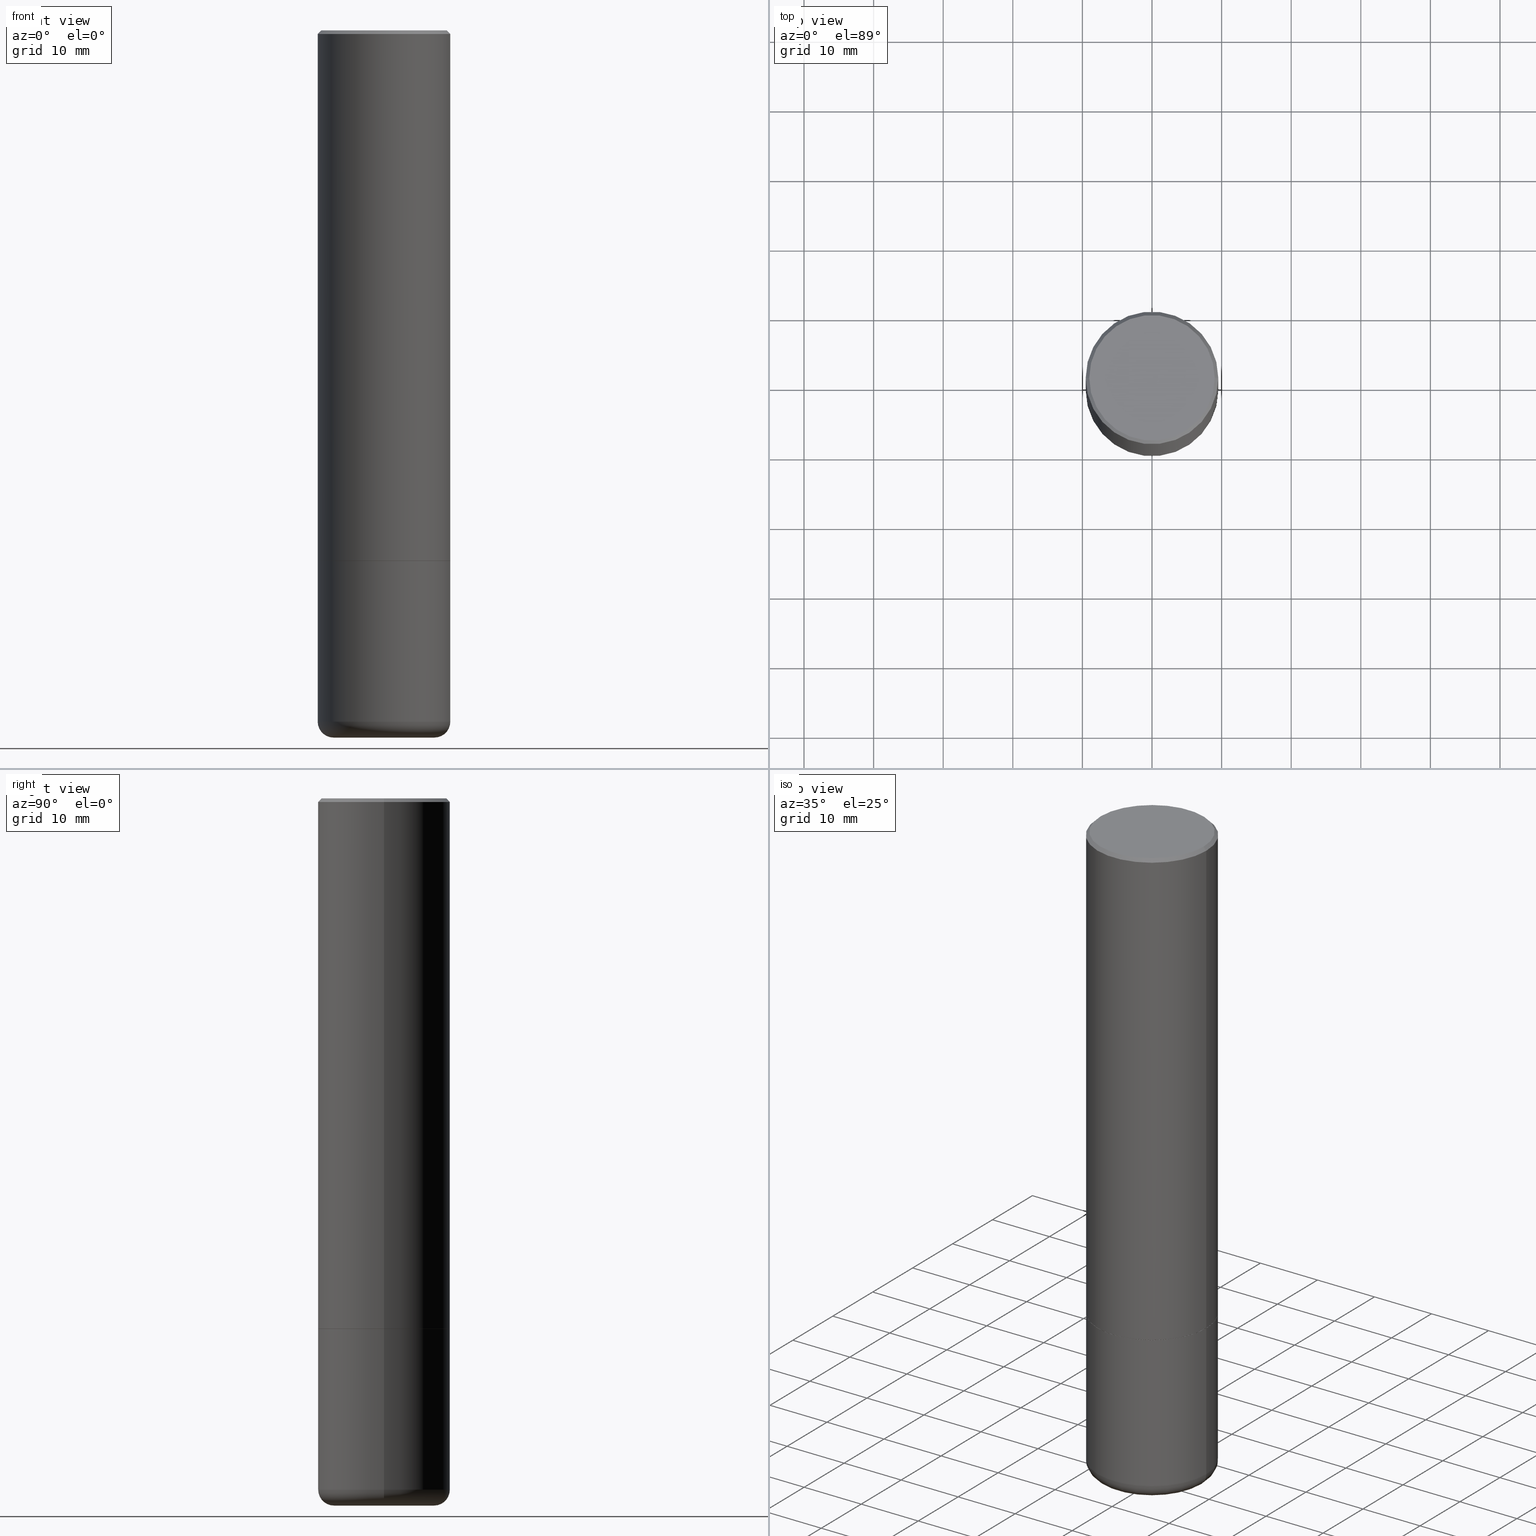
[diagram: canonical four-view strip — front | top / right | iso, engineering-drawing reading convention]
A machine part, canonical four-view strip (front | top / right | iso — engineering-drawing reading convention). The complete STEP part file that produces these views, byte-faithful:
ISO-10303-21;
HEADER;
FILE_DESCRIPTION (( 'STEP AP203' ),
    '1' );
FILE_NAME ('35719.STEP',
    '2022-11-02T20:51:30',
    ( '' ),
    ( '' ),
    'SwSTEP 2.0',
    'SolidWorks 2022',
    '' );
FILE_SCHEMA (( 'CONFIG_CONTROL_DESIGN' ));
ENDSEC;

DATA;
#1 = PERSON_AND_ORGANIZATION ( #315, #295 ) ;
#2 = CARTESIAN_POINT ( 'NONE',  ( 7.336406418555408669E-29, -1.047444401652943478E-14, -2.999999999999999556 ) ) ;
#3 = PERSON_AND_ORGANIZATION ( #315, #295 ) ;
#4 = LINE ( 'NONE', #468, #104 ) ;
#5 = ORIENTED_EDGE ( 'NONE', *, *, #289, .F. ) ;
#6 =( NAMED_UNIT ( * ) PLANE_ANGLE_UNIT ( ) SI_UNIT ( $, .RADIAN. ) );
#7 = CARTESIAN_POINT ( 'NONE',  ( 9.781021626775434250E-29, -1.396470664370530441E-14, -3.999650947105539256 ) ) ;
#8 = ORIENTED_EDGE ( 'NONE', *, *, #52, .F. ) ;
#9 = CARTESIAN_POINT ( 'NONE',  ( 9.781875224740546387E-29, -1.396592535537258233E-14, -4.000000000000000000 ) ) ;
#10 = ORIENTED_EDGE ( 'NONE', *, *, #254, .T. ) ;
#11 = CIRCLE ( 'NONE', #303, 0.3750000000000000555 ) ;
#12 = DIRECTION ( 'NONE',  ( 2.445468806185136597E-29, -3.491481338843145583E-15, -1.000000000000000000 ) ) ;
#13 =( GEOMETRIC_REPRESENTATION_CONTEXT ( 3 ) GLOBAL_UNCERTAINTY_ASSIGNED_CONTEXT ( ( #460 ) ) GLOBAL_UNIT_ASSIGNED_CONTEXT ( ( #148, #6, #68 ) ) REPRESENTATION_CONTEXT ( 'NONE', 'WORKASPACE' ) );
#14 = CC_DESIGN_SECURITY_CLASSIFICATION ( #314, ( #415 ) ) ;
#15 = EDGE_LOOP ( 'NONE', ( #395, #364 ) ) ;
#16 = CARTESIAN_POINT ( 'NONE',  ( 0.3739999999999994995, -1.308607205798409720E-14, -2.999999999999999556 ) ) ;
#17 = EDGE_LOOP ( 'NONE', ( #5, #326, #293, #252 ) ) ;
#18 = VECTOR ( 'NONE', #492, 39.37007874015748143 ) ;
#19 = EDGE_LOOP ( 'NONE', ( #473, #139, #24, #432 ) ) ;
#20 = EDGE_LOOP ( 'NONE', ( #205, #370 ) ) ;
#21 = DIRECTION ( 'NONE',  ( -2.445468806185136597E-29, 3.491481338843145583E-15, 1.000000000000000000 ) ) ;
#22 = VERTEX_POINT ( 'NONE', #383 ) ;
#23 = CARTESIAN_POINT ( 'NONE',  ( 7.336406418555408669E-29, -1.047444401652943478E-14, -2.999999999999999556 ) ) ;
#24 = ORIENTED_EDGE ( 'NONE', *, *, #164, .T. ) ;
#25 = AXIS2_PLACEMENT_3D ( 'NONE', #234, #48, #316 ) ;
#26 = ADVANCED_FACE ( 'NONE', ( #38 ), #193, .T. ) ;
#27 = DIRECTION ( 'NONE',  ( -2.445468806185136597E-29, 3.491481338843145583E-15, 1.000000000000000000 ) ) ;
#28 = CARTESIAN_POINT ( 'NONE',  ( 0.2442171118051470746, -1.564015765026606242E-14, -3.999650947105539256 ) ) ;
#29 = DIRECTION ( 'NONE',  ( -1.000000000000000000, 6.982962677686266711E-15, 0.000000000000000000 ) ) ;
#30 = VERTEX_POINT ( 'NONE', #36 ) ;
#31 = PERSON_AND_ORGANIZATION ( #315, #295 ) ;
#32 = ADVANCED_FACE ( 'NONE', ( #187 ), #33, .T. ) ;
#33 = CYLINDRICAL_SURFACE ( 'NONE', #42, 0.3749999999999992784 ) ;
#34 = AXIS2_PLACEMENT_3D ( 'NONE', #100, #334, #175 ) ;
#35 =( LENGTH_UNIT ( ) NAMED_UNIT ( * ) SI_UNIT ( $, .METRE. ) );
#36 = CARTESIAN_POINT ( 'NONE',  ( -0.2442171118051470746, -1.225934766671762741E-14, -3.999650947105539256 ) ) ;
#37 = CALENDAR_DATE ( 2022, 2, 11 ) ;
#38 = FACE_OUTER_BOUND ( 'NONE', #363, .T. ) ;
#39 = CC_DESIGN_DATE_AND_TIME_ASSIGNMENT ( #222, #191, ( #404 ) ) ;
#40 = CALENDAR_DATE ( 2022, 2, 11 ) ;
#41 = DIRECTION ( 'NONE',  ( -1.000000000000000000, 6.982962677686267499E-15, 0.000000000000000000 ) ) ;
#42 = AXIS2_PLACEMENT_3D ( 'NONE', #407, #340, #258 ) ;
#43 = CARTESIAN_POINT ( 'NONE',  ( -0.2850000000000003086, -1.162665720300238961E-14, -3.910003426924224534 ) ) ;
#44 = SHAPE_DEFINITION_REPRESENTATION ( #296, #417 ) ;
#45 = DIRECTION ( 'NONE',  ( -1.000000000000000000, 6.982962677686265922E-15, -4.876176775795935793E-29 ) ) ;
#46 = CARTESIAN_POINT ( 'NONE',  ( -0.3749999999999997780, 2.664535259100374119E-15, -1.844600658845588477E-29 ) ) ;
#47 = ORIENTED_EDGE ( 'NONE', *, *, #218, .F. ) ;
#48 = DIRECTION ( 'NONE',  ( -2.445468806185136597E-29, 3.491481338843145583E-15, 1.000000000000000000 ) ) ;
#49 = CONICAL_SURFACE ( 'NONE', #313, 0.2842146118051471215, 1.562069680534929894 ) ;
#50 = ORIENTED_EDGE ( 'NONE', *, *, #97, .F. ) ;
#51 = CC_DESIGN_DATE_AND_TIME_ASSIGNMENT ( #338, #343, ( #314 ) ) ;
#52 = EDGE_CURVE ( 'NONE', #166, #99, #336, .T. ) ;
#53 = EDGE_LOOP ( 'NONE', ( #329, #247, #396, #87 ) ) ;
#54 = ORIENTED_EDGE ( 'NONE', *, *, #170, .F. ) ;
#55 = CARTESIAN_POINT ( 'NONE',  ( 2.478951750578617109E-15, 0.3549999999999989275, -1.237341619044262680E-15 ) ) ;
#56 = ORIENTED_EDGE ( 'NONE', *, *, #74, .T. ) ;
#57 = CARTESIAN_POINT ( 'NONE',  ( 0.3749999999999995004, -1.309305502066178164E-14, -2.999999999999999556 ) ) ;
#58 = ADVANCED_FACE ( 'NONE', ( #416 ), #380, .F. ) ;
#59 = ORIENTED_EDGE ( 'NONE', *, *, #52, .T. ) ;
#60 = FACE_OUTER_BOUND ( 'NONE', #124, .T. ) ;
#61 = DIRECTION ( 'NONE',  ( -2.445468806185136597E-29, 3.491481338843145583E-15, 1.000000000000000000 ) ) ;
#62 = CLOSED_SHELL ( 'NONE', ( #186, #26, #154, #58, #434, #241, #414, #448, #285 ) ) ;
#63 = AXIS2_PLACEMENT_3D ( 'NONE', #427, #84, #243 ) ;
#64 = LINE ( 'NONE', #335, #365 ) ;
#65 = CARTESIAN_POINT ( 'NONE',  ( -0.3549999999999989275, 2.513866563967048758E-15, 4.268512490082953109E-18 ) ) ;
#66 = DIRECTION ( 'NONE',  ( -2.445468806185136597E-29, 3.491481338843145583E-15, 1.000000000000000000 ) ) ;
#67 = LINE ( 'NONE', #223, #310 ) ;
#68 =( NAMED_UNIT ( * ) SI_UNIT ( $, .STERADIAN. ) SOLID_ANGLE_UNIT ( ) );
#69 = FACE_OUTER_BOUND ( 'NONE', #17, .T. ) ;
#70 = PERSON_AND_ORGANIZATION ( #315, #295 ) ;
#71 = APPROVAL_PERSON_ORGANIZATION ( #1, #489, #238 ) ;
#72 = CARTESIAN_POINT ( 'NONE',  ( 7.333960949749226429E-29, -1.047095253519059492E-14, -2.999000000000000554 ) ) ;
#73 = APPLICATION_PROTOCOL_DEFINITION ( 'international standard', 'config_control_design', 1994, #129 ) ;
#74 = EDGE_CURVE ( 'NONE', #88, #297, #93, .T. ) ;
#75 = FACE_OUTER_BOUND ( 'NONE', #90, .T. ) ;
#76 = EDGE_CURVE ( 'NONE', #101, #171, #446, .T. ) ;
#77 = DIRECTION ( 'NONE',  ( 1.000000000000000000, -6.982962677686266711E-15, 4.876231632512002757E-29 ) ) ;
#78 = CARTESIAN_POINT ( 'NONE',  ( 0.3749999999999991673, -2.642516375941182112E-15, -0.02000000000000022246 ) ) ;
#79 = VECTOR ( 'NONE', #162, 39.37007874015748143 ) ;
#80 = CC_DESIGN_PERSON_AND_ORGANIZATION_ASSIGNMENT ( #267, #306, ( #172 ) ) ;
#81 = EDGE_CURVE ( 'NONE', #297, #171, #382, .T. ) ;
#82 = FACE_OUTER_BOUND ( 'NONE', #368, .T. ) ;
#83 = VERTEX_POINT ( 'NONE', #228 ) ;
#84 = DIRECTION ( 'NONE',  ( -2.445468806185136597E-29, 3.491481338843145583E-15, 1.000000000000000000 ) ) ;
#85 = DATE_AND_TIME ( #160, #216 ) ;
#86 = AXIS2_PLACEMENT_3D ( 'NONE', #55, #137, #403 ) ;
#87 = ORIENTED_EDGE ( 'NONE', *, *, #76, .F. ) ;
#88 = VERTEX_POINT ( 'NONE', #411 ) ;
#89 = DESIGN_CONTEXT ( 'detailed design', #158, 'design' ) ;
#90 = EDGE_LOOP ( 'NONE', ( #54, #291, #284, #281 ) ) ;
#91 = AXIS2_PLACEMENT_3D ( 'NONE', #356, #464, #280 ) ;
#92 = DIRECTION ( 'NONE',  ( -2.445468806185136597E-29, 3.491481338843145583E-15, 1.000000000000000000 ) ) ;
#93 = CIRCLE ( 'NONE', #226, 0.3749999999999995004 ) ;
#94 = TOROIDAL_SURFACE ( 'NONE', #447, 0.2850000000000003086, 0.08999999999999984401 ) ;
#95 = VERTEX_POINT ( 'NONE', #299 ) ;
#96 = CC_DESIGN_APPROVAL ( #489, ( #314 ) ) ;
#97 = EDGE_CURVE ( 'NONE', #119, #385, #11, .T. ) ;
#98 = CARTESIAN_POINT ( 'NONE',  ( 4.890937612370327459E-31, -6.982962677686369262E-17, -0.02000000000000022246 ) ) ;
#99 = VERTEX_POINT ( 'NONE', #180 ) ;
#100 = CARTESIAN_POINT ( 'NONE',  ( 9.781021626775434250E-29, -1.396470664370530441E-14, -3.999650947105539256 ) ) ;
#101 = VERTEX_POINT ( 'NONE', #65 ) ;
#102 = CARTESIAN_POINT ( 'NONE',  ( -0.2842146118051471215, -1.198126532868414923E-14, -4.000000000000000000 ) ) ;
#103 = EDGE_LOOP ( 'NONE', ( #177, #366, #333, #130 ) ) ;
#104 = VECTOR ( 'NONE', #123, 39.37007874015748854 ) ;
#105 = DIRECTION ( 'NONE',  ( 1.000000000000000000, -6.982962677686267499E-15, 0.000000000000000000 ) ) ;
#106 = CIRCLE ( 'NONE', #481, 0.2442171118051470746 ) ;
#107 = CARTESIAN_POINT ( 'NONE',  ( 0.000000000000000000, 0.000000000000000000, 0.000000000000000000 ) ) ;
#108 = DIRECTION ( 'NONE',  ( -1.000000000000000000, 6.982962677686265922E-15, 0.000000000000000000 ) ) ;
#109 = APPROVAL_DATE_TIME ( #410, #207 ) ;
#110 = CARTESIAN_POINT ( 'NONE',  ( 0.3750000000000000555, -1.627031500405102774E-14, -3.910003426924224534 ) ) ;
#111 = AXIS2_PLACEMENT_3D ( 'NONE', #2, #149, #239 ) ;
#112 = APPROVAL_ROLE ( '' ) ;
#113 = EDGE_CURVE ( 'NONE', #83, #119, #240, .T. ) ;
#114 = CARTESIAN_POINT ( 'NONE',  ( 0.2842146118051471215, -1.591577913059920711E-14, -4.000000000000000000 ) ) ;
#115 = DIRECTION ( 'NONE',  ( 1.000000000000000000, 0.000000000000000000, 0.000000000000000000 ) ) ;
#116 = FACE_OUTER_BOUND ( 'NONE', #53, .T. ) ;
#117 = APPROVAL_STATUS ( 'not_yet_approved' ) ;
#118 = DIRECTION ( 'NONE',  ( -2.445468806185136597E-29, 3.491481338843145583E-15, 1.000000000000000000 ) ) ;
#119 = VERTEX_POINT ( 'NONE', #110 ) ;
#120 = COORDINATED_UNIVERSAL_TIME_OFFSET ( 5, 0, .BEHIND. ) ;
#121 = AXIS2_PLACEMENT_3D ( 'NONE', #144, #188, #115 ) ;
#122 = DIRECTION ( 'NONE',  ( 2.445468806185136597E-29, -3.491481338843145583E-15, -1.000000000000000000 ) ) ;
#123 = DIRECTION ( 'NONE',  ( -0.7071067811868130271, 7.493145998871311837E-15, 0.7071067811862817853 ) ) ;
#124 = EDGE_LOOP ( 'NONE', ( #248, #480, #307, #213 ) ) ;
#125 = VECTOR ( 'NONE', #319, 39.37007874015748854 ) ;
#126 = ORIENTED_EDGE ( 'NONE', *, *, #225, .F. ) ;
#127 = ORIENTED_EDGE ( 'NONE', *, *, #97, .T. ) ;
#128 = CARTESIAN_POINT ( 'NONE',  ( 0.000000000000000000, 0.000000000000000000, 0.000000000000000000 ) ) ;
#129 = APPLICATION_CONTEXT ( 'configuration controlled 3d designs of mechanical parts and assemblies' ) ;
#130 = ORIENTED_EDGE ( 'NONE', *, *, #169, .F. ) ;
#131 = CC_DESIGN_PERSON_AND_ORGANIZATION_ASSIGNMENT ( #70, #224, ( #314 ) ) ;
#132 = DIRECTION ( 'NONE',  ( -2.445468806185136597E-29, 3.491481338843145583E-15, 1.000000000000000000 ) ) ;
#133 = LOCAL_TIME ( 16, 51, 30.00000000000000000, #347 ) ;
#134 = EDGE_LOOP ( 'NONE', ( #472, #201 ) ) ;
#135 = DIRECTION ( 'NONE',  ( 1.000000000000000000, -6.982962677686265922E-15, 4.876176775795935793E-29 ) ) ;
#136 = CARTESIAN_POINT ( 'NONE',  ( 9.781021626775434250E-29, -1.396470664370530441E-14, -3.999650947105539256 ) ) ;
#137 = DIRECTION ( 'NONE',  ( 2.438088387897960049E-29, -3.491481338843145188E-15, -1.000000000000000000 ) ) ;
#138 = APPROVAL ( #341, 'UNSPECIFIED' ) ;
#139 = ORIENTED_EDGE ( 'NONE', *, *, #242, .T. ) ;
#140 = CARTESIAN_POINT ( 'NONE',  ( 9.781875224740546387E-29, -1.396592535537258233E-14, -4.000000000000000000 ) ) ;
#141 = ADVANCED_FACE ( 'NONE', ( #69 ), #165, .T. ) ;
#142 = CARTESIAN_POINT ( 'NONE',  ( -0.3749999999999992784, 2.664535259100370569E-15, -1.844600658845586235E-29 ) ) ;
#143 = CONICAL_SURFACE ( 'NONE', #111, 0.3739999999999994995, 0.7853981633978239785 ) ;
#144 = CARTESIAN_POINT ( 'NONE',  ( 0.000000000000000000, 0.000000000000000000, 0.000000000000000000 ) ) ;
#145 = DIRECTION ( 'NONE',  ( -0.7071067811865469066, 2.468850131082251144E-15, -0.7071067811865479058 ) ) ;
#146 = PERSON_AND_ORGANIZATION ( #315, #295 ) ;
#147 = ORIENTED_EDGE ( 'NONE', *, *, #486, .F. ) ;
#148 =( CONVERSION_BASED_UNIT ( 'INCH', #452 ) LENGTH_UNIT ( ) NAMED_UNIT ( #449 ) );
#149 = DIRECTION ( 'NONE',  ( -2.445468806185136597E-29, 3.491481338843145583E-15, 1.000000000000000000 ) ) ;
#150 = CIRCLE ( 'NONE', #471, 0.3750000000000000555 ) ;
#151 = COORDINATED_UNIVERSAL_TIME_OFFSET ( 5, 0, .BEHIND. ) ;
#152 = DIRECTION ( 'NONE',  ( 1.000000000000000000, -6.982962677686266711E-15, 0.000000000000000000 ) ) ;
#153 = PERSON_AND_ORGANIZATION_ROLE ( 'design_supplier' ) ;
#154 = ADVANCED_FACE ( 'NONE', ( #184 ), #305, .T. ) ;
#155 = DIRECTION ( 'NONE',  ( 2.438088387897960049E-29, -3.491481338843145188E-15, -1.000000000000000000 ) ) ;
#156 = APPROVAL_DATE_TIME ( #85, #489 ) ;
#157 = DIRECTION ( 'NONE',  ( -2.445468806185136597E-29, 3.491481338843145583E-15, 1.000000000000000000 ) ) ;
#158 = APPLICATION_CONTEXT ( 'configuration controlled 3d designs of mechanical parts and assemblies' ) ;
#159 = VECTOR ( 'NONE', #451, 39.37007874015747433 ) ;
#160 = CALENDAR_DATE ( 2022, 2, 11 ) ;
#161 = VECTOR ( 'NONE', #203, 39.37007874015748143 ) ;
#162 = DIRECTION ( 'NONE',  ( -2.445468806185136877E-29, 3.491481338843145188E-15, 1.000000000000000000 ) ) ;
#163 = CARTESIAN_POINT ( 'NONE',  ( 4.890937612370327459E-31, -6.982962677686369262E-17, -0.02000000000000022246 ) ) ;
#164 = EDGE_CURVE ( 'NONE', #88, #22, #374, .T. ) ;
#165 = CONICAL_SURFACE ( 'NONE', #445, 0.3739999999999994995, 0.7853981633978239785 ) ;
#166 = VERTEX_POINT ( 'NONE', #409 ) ;
#167 = AXIS2_PLACEMENT_3D ( 'NONE', #462, #118, #286 ) ;
#168 = ORIENTED_EDGE ( 'NONE', *, *, #350, .F. ) ;
#169 = EDGE_CURVE ( 'NONE', #477, #88, #67, .T. ) ;
#170 = EDGE_CURVE ( 'NONE', #99, #83, #391, .T. ) ;
#171 = VERTEX_POINT ( 'NONE', #386 ) ;
#172 = PRODUCT ( '35719', '35719', '', ( #412 ) ) ;
#173 = DIRECTION ( 'NONE',  ( 1.000000000000000000, -6.982962677686269077E-15, 0.000000000000000000 ) ) ;
#174 = ORIENTED_EDGE ( 'NONE', *, *, #220, .F. ) ;
#175 = DIRECTION ( 'NONE',  ( -1.000000000000000000, 6.982962677686265922E-15, 0.000000000000000000 ) ) ;
#176 = AXIS2_PLACEMENT_3D ( 'NONE', #353, #388, #459 ) ;
#177 = ORIENTED_EDGE ( 'NONE', *, *, #317, .T. ) ;
#178 = EDGE_CURVE ( 'NONE', #99, #30, #337, .T. ) ;
#179 = PLANE ( 'NONE',  #392 ) ;
#180 = CARTESIAN_POINT ( 'NONE',  ( 0.2442171118051470746, -1.564015765026606242E-14, -3.999650947105539256 ) ) ;
#181 = FACE_OUTER_BOUND ( 'NONE', #440, .T. ) ;
#182 = CARTESIAN_POINT ( 'NONE',  ( 9.561791412620176703E-29, -1.365170399991867772E-14, -3.910003426924224534 ) ) ;
#183 = APPROVAL_DATE_TIME ( #274, #138 ) ;
#184 = FACE_OUTER_BOUND ( 'NONE', #400, .T. ) ;
#185 = APPROVAL_ROLE ( '' ) ;
#186 = ADVANCED_FACE ( 'NONE', ( #82 ), #273, .F. ) ;
#187 = FACE_OUTER_BOUND ( 'NONE', #19, .T. ) ;
#188 = DIRECTION ( 'NONE',  ( 0.000000000000000000, 0.000000000000000000, 1.000000000000000000 ) ) ;
#189 = AXIS2_PLACEMENT_3D ( 'NONE', #283, #155, #45 ) ;
#190 = DIRECTION ( 'NONE',  ( 2.445468806185136597E-29, -3.491481338843145583E-15, -1.000000000000000000 ) ) ;
#191 = DATE_TIME_ROLE ( 'creation_date' ) ;
#192 = CARTESIAN_POINT ( 'NONE',  ( -0.3749999999999993894, -2.605855821883354597E-15, -2.999000000000000554 ) ) ;
#193 = TOROIDAL_SURFACE ( 'NONE', #260, 0.2850000000000003086, 0.08999999999999984401 ) ;
#194 = ORIENTED_EDGE ( 'NONE', *, *, #362, .F. ) ;
#195 = CIRCLE ( 'NONE', #429, 0.3749999999999995004 ) ;
#196 = PERSON_AND_ORGANIZATION_ROLE ( 'creator' ) ;
#197 = FACE_OUTER_BOUND ( 'NONE', #20, .T. ) ;
#198 = CARTESIAN_POINT ( 'NONE',  ( -1.043851414335219820E-46, 1.490343170380447200E-32, 4.268512490100411279E-18 ) ) ;
#199 = ORIENTED_EDGE ( 'NONE', *, *, #164, .F. ) ;
#200 = FACE_OUTER_BOUND ( 'NONE', #103, .T. ) ;
#201 = ORIENTED_EDGE ( 'NONE', *, *, #423, .T. ) ;
#202 = APPROVAL_PERSON_ORGANIZATION ( #3, #207, #185 ) ;
#203 = DIRECTION ( 'NONE',  ( -2.445468806185136877E-29, 3.491481338843145188E-15, 1.000000000000000000 ) ) ;
#204 = AXIS2_PLACEMENT_3D ( 'NONE', #9, #122, #421 ) ;
#205 = ORIENTED_EDGE ( 'NONE', *, *, #350, .T. ) ;
#206 = ORIENTED_EDGE ( 'NONE', *, *, #458, .F. ) ;
#207 = APPROVAL ( #117, 'UNSPECIFIED' ) ;
#208 = AXIS2_PLACEMENT_3D ( 'NONE', #163, #92, #250 ) ;
#209 = ORIENTED_EDGE ( 'NONE', *, *, #482, .T. ) ;
#210 = FACE_OUTER_BOUND ( 'NONE', #15, .T. ) ;
#211 = ORIENTED_EDGE ( 'NONE', *, *, #461, .T. ) ;
#212 = DIRECTION ( 'NONE',  ( 1.000000000000000000, -6.982962677686266711E-15, 4.876231632512002757E-29 ) ) ;
#213 = ORIENTED_EDGE ( 'NONE', *, *, #431, .F. ) ;
#214 = CARTESIAN_POINT ( 'NONE',  ( 9.561791412620176703E-29, -1.365170399991867772E-14, -3.910003426924224534 ) ) ;
#215 = AXIS2_PLACEMENT_3D ( 'NONE', #128, #66, #135 ) ;
#216 = LOCAL_TIME ( 16, 51, 30.00000000000000000, #120 ) ;
#217 = DIRECTION ( 'NONE',  ( 1.000000000000000000, -6.982962677686265922E-15, 4.876176775795935793E-29 ) ) ;
#218 = EDGE_CURVE ( 'NONE', #101, #433, #339, .T. ) ;
#219 = CARTESIAN_POINT ( 'NONE',  ( 0.3549999999999989275, -2.538996582575033948E-15, 4.268512490117958041E-18 ) ) ;
#220 = EDGE_CURVE ( 'NONE', #119, #437, #384, .T. ) ;
#221 = DIRECTION ( 'NONE',  ( 1.000000000000000000, -6.982962677686257244E-15, 0.000000000000000000 ) ) ;
#222 = DATE_AND_TIME ( #40, #133 ) ;
#223 = CARTESIAN_POINT ( 'NONE',  ( 0.3739999999999994995, -1.308607205798409720E-14, -2.999999999999999556 ) ) ;
#224 = PERSON_AND_ORGANIZATION_ROLE ( 'classification_officer' ) ;
#225 = EDGE_CURVE ( 'NONE', #30, #99, #106, .T. ) ;
#226 = AXIS2_PLACEMENT_3D ( 'NONE', #72, #309, #342 ) ;
#227 = DIRECTION ( 'NONE',  ( -2.445468806185136597E-29, 3.491481338843145583E-15, 1.000000000000000000 ) ) ;
#228 = CARTESIAN_POINT ( 'NONE',  ( 0.2842146118051471215, -1.595058538206101543E-14, -4.000000000000000000 ) ) ;
#229 = CALENDAR_DATE ( 2022, 2, 11 ) ;
#230 = DIRECTION ( 'NONE',  ( 0.9999619230641714207, -6.890705306874825328E-15, -0.008726535498369011531 ) ) ;
#231 = EDGE_CURVE ( 'NONE', #287, #385, #425, .T. ) ;
#232 = EDGE_LOOP ( 'NONE', ( #8, #246, #290 ) ) ;
#233 = VECTOR ( 'NONE', #262, 39.37007874015748143 ) ;
#234 = CARTESIAN_POINT ( 'NONE',  ( 7.333960949749226429E-29, -1.047095253519059492E-14, -2.999000000000000554 ) ) ;
#235 = VECTOR ( 'NONE', #145, 39.37007874015748854 ) ;
#236 = CIRCLE ( 'NONE', #381, 0.2842146118051471215 ) ;
#237 = DIRECTION ( 'NONE',  ( -2.445468806185136597E-29, 3.491481338843145583E-15, 1.000000000000000000 ) ) ;
#238 = APPROVAL_ROLE ( '' ) ;
#239 = DIRECTION ( 'NONE',  ( 1.000000000000000000, -6.982962677686269077E-15, 0.000000000000000000 ) ) ;
#240 = CIRCLE ( 'NONE', #345, 0.08999999999999985789 ) ;
#241 = ADVANCED_FACE ( 'NONE', ( #197 ), #320, .F. ) ;
#242 = EDGE_CURVE ( 'NONE', #297, #88, #275, .T. ) ;
#243 = DIRECTION ( 'NONE',  ( 1.000000000000000000, -6.982962677686266711E-15, 0.000000000000000000 ) ) ;
#244 = CIRCLE ( 'NONE', #372, 0.3739999999999994995 ) ;
#245 = AXIS2_PLACEMENT_3D ( 'NONE', #279, #376, #29 ) ;
#246 = ORIENTED_EDGE ( 'NONE', *, *, #458, .T. ) ;
#247 = ORIENTED_EDGE ( 'NONE', *, *, #257, .T. ) ;
#248 = ORIENTED_EDGE ( 'NONE', *, *, #231, .F. ) ;
#249 = AXIS2_PLACEMENT_3D ( 'NONE', #136, #190, #108 ) ;
#250 = DIRECTION ( 'NONE',  ( 1.000000000000000000, -6.982962677686266711E-15, 0.000000000000000000 ) ) ;
#251 = AXIS2_PLACEMENT_3D ( 'NONE', #298, #27, #212 ) ;
#252 = ORIENTED_EDGE ( 'NONE', *, *, #242, .F. ) ;
#253 = DIRECTION ( 'NONE',  ( 1.000000000000000000, -6.982962677686267499E-15, 0.000000000000000000 ) ) ;
#254 = EDGE_CURVE ( 'NONE', #385, #95, #420, .T. ) ;
#255 = ORIENTED_EDGE ( 'NONE', *, *, #170, .T. ) ;
#256 = DIRECTION ( 'NONE',  ( -0.9999619230641714207, 6.952228252019186602E-15, -0.008726535498369011531 ) ) ;
#257 = EDGE_CURVE ( 'NONE', #433, #22, #424, .T. ) ;
#258 = DIRECTION ( 'NONE',  ( 1.000000000000000000, -6.982962677686267499E-15, 4.876176775795935232E-29 ) ) ;
#259 = FACE_OUTER_BOUND ( 'NONE', #134, .T. ) ;
#260 = AXIS2_PLACEMENT_3D ( 'NONE', #182, #450, #301 ) ;
#261 = CONICAL_SURFACE ( 'NONE', #304, 0.3749999999999991673, 0.7853981633974476129 ) ;
#262 = DIRECTION ( 'NONE',  ( -2.445468806185136877E-29, 3.491481338843145188E-15, 1.000000000000000000 ) ) ;
#263 = CARTESIAN_POINT ( 'NONE',  ( -0.3750000000000000555, -9.398538749123680552E-15, -3.910003426924224534 ) ) ;
#264 = CARTESIAN_POINT ( 'NONE',  ( 0.3749999999999992784, -2.618611004132345283E-15, 1.828566290923472279E-29 ) ) ;
#265 = AXIS2_PLACEMENT_3D ( 'NONE', #43, #359, #456 ) ;
#266 = ADVANCED_FACE ( 'NONE', ( #200 ), #143, .T. ) ;
#267 = PERSON_AND_ORGANIZATION ( #315, #295 ) ;
#268 = CARTESIAN_POINT ( 'NONE',  ( 9.561791412620176703E-29, -1.365170399991867772E-14, -3.910003426924224534 ) ) ;
#269 = VECTOR ( 'NONE', #230, 39.37007874015748854 ) ;
#270 = SECURITY_CLASSIFICATION_LEVEL ( 'unclassified' ) ;
#271 = CARTESIAN_POINT ( 'NONE',  ( 7.336406418555408669E-29, -1.047444401652943478E-14, -2.999999999999999556 ) ) ;
#272 = CC_DESIGN_APPROVAL ( #207, ( #415 ) ) ;
#273 = CONICAL_SURFACE ( 'NONE', #204, 0.2842146118051471215, 1.562069680534929894 ) ;
#274 = DATE_AND_TIME ( #229, #332 ) ;
#275 = CIRCLE ( 'NONE', #25, 0.3749999999999995004 ) ;
#276 = PRODUCT_RELATED_PRODUCT_CATEGORY ( 'detail', '', ( #172 ) ) ;
#277 = CARTESIAN_POINT ( 'NONE',  ( 0.3749999999999997780, -2.618611004132348044E-15, 1.828566290923474801E-29 ) ) ;
#278 = CALENDAR_DATE ( 2022, 2, 11 ) ;
#279 = CARTESIAN_POINT ( 'NONE',  ( 4.890937612370327459E-31, -6.982962677686369262E-17, -0.02000000000000022246 ) ) ;
#280 = DIRECTION ( 'NONE',  ( 1.000000000000000000, -6.982962677686265922E-15, 0.000000000000000000 ) ) ;
#281 = ORIENTED_EDGE ( 'NONE', *, *, #461, .F. ) ;
#282 = AXIS2_PLACEMENT_3D ( 'NONE', #367, #21, #253 ) ;
#283 = CARTESIAN_POINT ( 'NONE',  ( 2.618611004132419436E-15, 0.3749999999999890088, -3.000000000000000888 ) ) ;
#284 = ORIENTED_EDGE ( 'NONE', *, *, #362, .T. ) ;
#285 = ADVANCED_FACE ( 'NONE', ( #75 ), #49, .F. ) ;
#286 = DIRECTION ( 'NONE',  ( 1.000000000000000000, -6.982962677686269077E-15, 0.000000000000000000 ) ) ;
#287 = VERTEX_POINT ( 'NONE', #322 ) ;
#288 = CIRCLE ( 'NONE', #176, 0.3749999999999991673 ) ;
#289 = EDGE_CURVE ( 'NONE', #394, #297, #4, .T. ) ;
#290 = ORIENTED_EDGE ( 'NONE', *, *, #178, .F. ) ;
#291 = ORIENTED_EDGE ( 'NONE', *, *, #178, .T. ) ;
#292 = CARTESIAN_POINT ( 'NONE',  ( 9.561791412620176703E-29, -1.365170399991867772E-14, -3.910003426924224534 ) ) ;
#293 = ORIENTED_EDGE ( 'NONE', *, *, #169, .T. ) ;
#294 = DIRECTION ( 'NONE',  ( -2.445468806185136597E-29, 3.491481338843145583E-15, 1.000000000000000000 ) ) ;
#295 = ORGANIZATION ( 'UNSPECIFIED', 'UNSPECIFIED', '' ) ;
#296 = PRODUCT_DEFINITION_SHAPE ( 'NONE', 'NONE',  #404 ) ;
#297 = VERTEX_POINT ( 'NONE', #192 ) ;
#298 = CARTESIAN_POINT ( 'NONE',  ( -1.043851414335219820E-46, 1.490343170380447200E-32, 4.268512490100411279E-18 ) ) ;
#299 = CARTESIAN_POINT ( 'NONE',  ( -0.3749999999999995004, -9.398538749123683708E-15, -2.999999999999999556 ) ) ;
#300 = DIRECTION ( 'NONE',  ( -1.000000000000000000, 6.982962677686266711E-15, 0.000000000000000000 ) ) ;
#301 = DIRECTION ( 'NONE',  ( 1.000000000000000000, -6.982962677686265133E-15, 4.883557194083112340E-29 ) ) ;
#302 = DIRECTION ( 'NONE',  ( -2.445468806185136597E-29, 3.491481338843145583E-15, 1.000000000000000000 ) ) ;
#303 = AXIS2_PLACEMENT_3D ( 'NONE', #268, #443, #490 ) ;
#304 = AXIS2_PLACEMENT_3D ( 'NONE', #98, #483, #300 ) ;
#305 = CYLINDRICAL_SURFACE ( 'NONE', #358, 0.3749999999999997780 ) ;
#306 = PERSON_AND_ORGANIZATION_ROLE ( 'design_owner' ) ;
#307 = ORIENTED_EDGE ( 'NONE', *, *, #113, .T. ) ;
#308 = COORDINATED_UNIVERSAL_TIME_OFFSET ( 5, 0, .BEHIND. ) ;
#309 = DIRECTION ( 'NONE',  ( -2.445468806185136597E-29, 3.491481338843145583E-15, 1.000000000000000000 ) ) ;
#310 = VECTOR ( 'NONE', #379, 39.37007874015748854 ) ;
#311 = MANIFOLD_SOLID_BREP ( 'Body-Move/Copy2[1]', #62 ) ;
#312 = CARTESIAN_POINT ( 'NONE',  ( 9.781875224740546387E-29, -1.396592535537258233E-14, -4.000000000000000000 ) ) ;
#313 = AXIS2_PLACEMENT_3D ( 'NONE', #312, #12, #41 ) ;
#314 = SECURITY_CLASSIFICATION ( '', '', #270 ) ;
#315 = PERSON ( 'UNSPECIFIED', 'UNSPECIFIED', 'UNSPECIFIED', ('UNSPECIFIED'), ('UNSPECIFIED'), ('UNSPECIFIED') ) ;
#316 = DIRECTION ( 'NONE',  ( 1.000000000000000000, -6.982962677686266711E-15, 0.000000000000000000 ) ) ;
#317 = EDGE_CURVE ( 'NONE', #477, #394, #321, .T. ) ;
#318 = APPROVAL_STATUS ( 'not_yet_approved' ) ;
#319 = DIRECTION ( 'NONE',  ( 0.7071067811865469066, -7.319954787623252890E-15, -0.7071067811865479058 ) ) ;
#320 = PLANE ( 'NONE',  #189 ) ;
#321 = CIRCLE ( 'NONE', #167, 0.3739999999999994995 ) ;
#322 = CARTESIAN_POINT ( 'NONE',  ( -0.2842146118051471215, -1.146681390902031989E-14, -4.000000000000000000 ) ) ;
#323 = FACE_OUTER_BOUND ( 'NONE', #232, .T. ) ;
#324 = ORIENTED_EDGE ( 'NONE', *, *, #231, .T. ) ;
#325 = CIRCLE ( 'NONE', #251, 0.3549999999999989275 ) ;
#326 = ORIENTED_EDGE ( 'NONE', *, *, #428, .T. ) ;
#327 = ORIENTED_EDGE ( 'NONE', *, *, #81, .T. ) ;
#328 = PLANE ( 'NONE',  #86 ) ;
#329 = ORIENTED_EDGE ( 'NONE', *, *, #423, .F. ) ;
#330 = EDGE_CURVE ( 'NONE', #95, #437, #465, .T. ) ;
#331 = FACE_OUTER_BOUND ( 'NONE', #430, .T. ) ;
#332 = LOCAL_TIME ( 16, 51, 30.00000000000000000, #491 ) ;
#333 = ORIENTED_EDGE ( 'NONE', *, *, #74, .F. ) ;
#334 = DIRECTION ( 'NONE',  ( 2.445468806185136597E-29, -3.491481338843145583E-15, -1.000000000000000000 ) ) ;
#335 = CARTESIAN_POINT ( 'NONE',  ( -0.2442171118051470746, -1.225934766671762741E-14, -3.999650947105539256 ) ) ;
#336 = LINE ( 'NONE', #28, #159 ) ;
#337 = CIRCLE ( 'NONE', #91, 0.2442171118051470746 ) ;
#338 = DATE_AND_TIME ( #37, #466 ) ;
#339 = CIRCLE ( 'NONE', #467, 0.3549999999999989275 ) ;
#340 = DIRECTION ( 'NONE',  ( -2.445468806185136597E-29, 3.491481338843145583E-15, 1.000000000000000000 ) ) ;
#341 = APPROVAL_STATUS ( 'not_yet_approved' ) ;
#342 = DIRECTION ( 'NONE',  ( 1.000000000000000000, -6.982962677686266711E-15, 0.000000000000000000 ) ) ;
#343 = DATE_TIME_ROLE ( 'classification_date' ) ;
#344 = ORIENTED_EDGE ( 'NONE', *, *, #431, .T. ) ;
#345 = AXIS2_PLACEMENT_3D ( 'NONE', #453, #405, #221 ) ;
#346 = CC_DESIGN_PERSON_AND_ORGANIZATION_ASSIGNMENT ( #31, #378, ( #404 ) ) ;
#347 = COORDINATED_UNIVERSAL_TIME_OFFSET ( 5, 0, .BEHIND. ) ;
#348 = DIRECTION ( 'NONE',  ( -2.445468806185136597E-29, 3.491481338843145583E-15, 1.000000000000000000 ) ) ;
#349 = VECTOR ( 'NONE', #256, 39.37007874015748854 ) ;
#350 = EDGE_CURVE ( 'NONE', #437, #95, #195, .T. ) ;
#351 = ORIENTED_EDGE ( 'NONE', *, *, #76, .T. ) ;
#352 = PERSON_AND_ORGANIZATION ( #315, #295 ) ;
#353 = CARTESIAN_POINT ( 'NONE',  ( 4.890937612370327459E-31, -6.982962677686369262E-17, -0.02000000000000022246 ) ) ;
#354 = EDGE_CURVE ( 'NONE', #22, #171, #288, .T. ) ;
#355 = ADVANCED_FACE ( 'NONE', ( #116 ), #438, .T. ) ;
#356 = CARTESIAN_POINT ( 'NONE',  ( 9.781021626775434250E-29, -1.396470664370530441E-14, -3.999650947105539256 ) ) ;
#357 = ORIENTED_EDGE ( 'NONE', *, *, #354, .F. ) ;
#358 = AXIS2_PLACEMENT_3D ( 'NONE', #107, #227, #217 ) ;
#359 = DIRECTION ( 'NONE',  ( 7.105427357601001859E-15, 1.000000000000000000, -3.491481338843145583E-15 ) ) ;
#360 = APPROVAL_PERSON_ORGANIZATION ( #457, #138, #112 ) ;
#361 = DIRECTION ( 'NONE',  ( -2.445468806185136597E-29, 3.491481338843145583E-15, 1.000000000000000000 ) ) ;
#362 = EDGE_CURVE ( 'NONE', #30, #287, #436, .T. ) ;
#363 = EDGE_LOOP ( 'NONE', ( #211, #324, #50, #389 ) ) ;
#364 = ORIENTED_EDGE ( 'NONE', *, *, #428, .F. ) ;
#365 = VECTOR ( 'NONE', #469, 39.37007874015747433 ) ;
#366 = ORIENTED_EDGE ( 'NONE', *, *, #289, .T. ) ;
#367 = CARTESIAN_POINT ( 'NONE',  ( 9.781875224740546387E-29, -1.396592535537258233E-14, -4.000000000000000000 ) ) ;
#368 = EDGE_LOOP ( 'NONE', ( #402, #255, #147, #194 ) ) ;
#369 = DIRECTION ( 'NONE',  ( 1.000000000000000000, -6.982962677686267499E-15, 4.876176775795935232E-29 ) ) ;
#370 = ORIENTED_EDGE ( 'NONE', *, *, #330, .T. ) ;
#371 = CLOSED_SHELL ( 'NONE', ( #266, #393, #355, #435, #32, #141, #398, #375 ) ) ;
#372 = AXIS2_PLACEMENT_3D ( 'NONE', #439, #361, #173 ) ;
#373 = FACE_OUTER_BOUND ( 'NONE', #484, .T. ) ;
#374 = LINE ( 'NONE', #264, #233 ) ;
#375 = ADVANCED_FACE ( 'NONE', ( #259 ), #328, .F. ) ;
#376 = DIRECTION ( 'NONE',  ( 2.445468806185136597E-29, -3.491481338843145583E-15, -1.000000000000000000 ) ) ;
#377 = DIRECTION ( 'NONE',  ( 1.000000000000000000, -6.982962677686269077E-15, 0.000000000000000000 ) ) ;
#378 = PERSON_AND_ORGANIZATION_ROLE ( 'creator' ) ;
#379 = DIRECTION ( 'NONE',  ( 0.7071067811868130271, -2.468850131085038979E-15, 0.7071067811862817853 ) ) ;
#380 = CONICAL_SURFACE ( 'NONE', #249, 0.2442171118051470746, 1.535889741755008808 ) ;
#381 = AXIS2_PLACEMENT_3D ( 'NONE', #140, #302, #105 ) ;
#382 = LINE ( 'NONE', #142, #18 ) ;
#383 = CARTESIAN_POINT ( 'NONE',  ( 0.3749999999999991673, -2.642516375941182112E-15, -0.02000000000000022246 ) ) ;
#384 = LINE ( 'NONE', #277, #79 ) ;
#385 = VERTEX_POINT ( 'NONE', #263 ) ;
#386 = CARTESIAN_POINT ( 'NONE',  ( -0.3749999999999991673, 2.548781377355480407E-15, -0.02000000000000022246 ) ) ;
#387 = CONICAL_SURFACE ( 'NONE', #34, 0.2442171118051470746, 1.535889741755008808 ) ;
#388 = DIRECTION ( 'NONE',  ( -2.445468806185136597E-29, 3.491481338843145583E-15, 1.000000000000000000 ) ) ;
#389 = ORIENTED_EDGE ( 'NONE', *, *, #113, .F. ) ;
#390 = DIRECTION ( 'NONE',  ( 1.000000000000000000, -6.982962677686265922E-15, 0.000000000000000000 ) ) ;
#391 = LINE ( 'NONE', #114, #269 ) ;
#392 = AXIS2_PLACEMENT_3D ( 'NONE', #23, #401, #485 ) ;
#393 = ADVANCED_FACE ( 'NONE', ( #181 ), #408, .T. ) ;
#394 = VERTEX_POINT ( 'NONE', #476 ) ;
#395 = ORIENTED_EDGE ( 'NONE', *, *, #317, .F. ) ;
#396 = ORIENTED_EDGE ( 'NONE', *, *, #354, .T. ) ;
#397 = CC_DESIGN_APPROVAL ( #138, ( #404 ) ) ;
#398 = ADVANCED_FACE ( 'NONE', ( #210 ), #179, .F. ) ;
#399 = CARTESIAN_POINT ( 'NONE',  ( 0.000000000000000000, 0.000000000000000000, 0.000000000000000000 ) ) ;
#400 = EDGE_LOOP ( 'NONE', ( #127, #10, #168, #174 ) ) ;
#401 = DIRECTION ( 'NONE',  ( -2.438088387897960049E-29, 3.491481338843145188E-15, 1.000000000000000000 ) ) ;
#402 = ORIENTED_EDGE ( 'NONE', *, *, #225, .T. ) ;
#403 = DIRECTION ( 'NONE',  ( -1.000000000000000000, 6.982962677686265922E-15, -4.876176775795935793E-29 ) ) ;
#404 = PRODUCT_DEFINITION ( 'UNKNOWN', '', #415, #89 ) ;
#405 = DIRECTION ( 'NONE',  ( -6.982962677686266711E-15, -1.000000000000000000, 3.491481338843145583E-15 ) ) ;
#406 = DIRECTION ( 'NONE',  ( 1.000000000000000000, -6.982962677686265133E-15, 4.883557194083112340E-29 ) ) ;
#407 = CARTESIAN_POINT ( 'NONE',  ( 0.000000000000000000, 0.000000000000000000, 0.000000000000000000 ) ) ;
#408 = CYLINDRICAL_SURFACE ( 'NONE', #455, 0.3749999999999992784 ) ;
#409 = CARTESIAN_POINT ( 'NONE',  ( 9.760185935513332817E-29, -1.393490195515481921E-14, -3.991122697638251005 ) ) ;
#410 = DATE_AND_TIME ( #278, #478 ) ;
#411 = CARTESIAN_POINT ( 'NONE',  ( 0.3749999999999995004, -1.308956353932294179E-14, -2.999000000000000554 ) ) ;
#412 = MECHANICAL_CONTEXT ( 'NONE', #129, 'mechanical' ) ;
#413 = CC_DESIGN_PERSON_AND_ORGANIZATION_ASSIGNMENT ( #146, #196, ( #415 ) ) ;
#414 = ADVANCED_FACE ( 'NONE', ( #331 ), #479, .T. ) ;
#415 = PRODUCT_DEFINITION_FORMATION_WITH_SPECIFIED_SOURCE ( 'ANY', '', #172, .NOT_KNOWN. ) ;
#416 = FACE_OUTER_BOUND ( 'NONE', #463, .T. ) ;
#417 = ADVANCED_BREP_SHAPE_REPRESENTATION ( '35719', ( #311, #474, #121 ), #13 ) ;
#418 = CARTESIAN_POINT ( 'NONE',  ( 7.336406418555408669E-29, -1.047444401652943478E-14, -2.999999999999999556 ) ) ;
#419 = ORIENTED_EDGE ( 'NONE', *, *, #220, .T. ) ;
#420 = LINE ( 'NONE', #46, #161 ) ;
#421 = DIRECTION ( 'NONE',  ( -1.000000000000000000, 6.982962677686267499E-15, 0.000000000000000000 ) ) ;
#422 = CIRCLE ( 'NONE', #208, 0.3749999999999991673 ) ;
#423 = EDGE_CURVE ( 'NONE', #433, #101, #325, .T. ) ;
#424 = LINE ( 'NONE', #78, #125 ) ;
#425 = CIRCLE ( 'NONE', #265, 0.08999999999999985789 ) ;
#426 = ORIENTED_EDGE ( 'NONE', *, *, #254, .F. ) ;
#427 = CARTESIAN_POINT ( 'NONE',  ( 7.336406418555408669E-29, -1.047444401652943478E-14, -2.999999999999999556 ) ) ;
#428 = EDGE_CURVE ( 'NONE', #394, #477, #244, .T. ) ;
#429 = AXIS2_PLACEMENT_3D ( 'NONE', #418, #348, #152 ) ;
#430 = EDGE_LOOP ( 'NONE', ( #426, #344, #419, #470 ) ) ;
#431 = EDGE_CURVE ( 'NONE', #385, #119, #150, .T. ) ;
#432 = ORIENTED_EDGE ( 'NONE', *, *, #482, .F. ) ;
#433 = VERTEX_POINT ( 'NONE', #219 ) ;
#434 = ADVANCED_FACE ( 'NONE', ( #323 ), #387, .F. ) ;
#435 = ADVANCED_FACE ( 'NONE', ( #373 ), #261, .T. ) ;
#436 = LINE ( 'NONE', #102, #349 ) ;
#437 = VERTEX_POINT ( 'NONE', #57 ) ;
#438 = CONICAL_SURFACE ( 'NONE', #245, 0.3749999999999991673, 0.7853981633974476129 ) ;
#439 = CARTESIAN_POINT ( 'NONE',  ( 7.336406418555408669E-29, -1.047444401652943478E-14, -2.999999999999999556 ) ) ;
#440 = EDGE_LOOP ( 'NONE', ( #56, #327, #357, #199 ) ) ;
#441 = DIRECTION ( 'NONE',  ( 1.000000000000000000, -6.982962677686266711E-15, 0.000000000000000000 ) ) ;
#442 = CC_DESIGN_PERSON_AND_ORGANIZATION_ASSIGNMENT ( #352, #153, ( #415 ) ) ;
#443 = DIRECTION ( 'NONE',  ( -2.445468806185136597E-29, 3.491481338843145583E-15, 1.000000000000000000 ) ) ;
#444 = DIRECTION ( 'NONE',  ( -2.445468806185136597E-29, 3.491481338843145583E-15, 1.000000000000000000 ) ) ;
#445 = AXIS2_PLACEMENT_3D ( 'NONE', #271, #61, #377 ) ;
#446 = LINE ( 'NONE', #487, #235 ) ;
#447 = AXIS2_PLACEMENT_3D ( 'NONE', #214, #444, #406 ) ;
#448 = ADVANCED_FACE ( 'NONE', ( #60 ), #94, .T. ) ;
#449 = DIMENSIONAL_EXPONENTS ( 1.000000000000000000, 0.000000000000000000, 0.000000000000000000, 0.000000000000000000, 0.000000000000000000, 0.000000000000000000, 0.000000000000000000 ) ;
#450 = DIRECTION ( 'NONE',  ( -2.445468806185136597E-29, 3.491481338843145583E-15, 1.000000000000000000 ) ) ;
#451 = DIRECTION ( 'NONE',  ( 0.9993908270190957621, -6.978169709227547010E-15, -0.03489949670250219738 ) ) ;
#452 = LENGTH_MEASURE_WITH_UNIT ( LENGTH_MEASURE( 0.02539999999999999897 ), #35 );
#453 = CARTESIAN_POINT ( 'NONE',  ( 0.2850000000000003086, -1.564184836305926752E-14, -3.910003426924224534 ) ) ;
#454 = APPLICATION_PROTOCOL_DEFINITION ( 'international standard', 'config_control_design', 1994, #158 ) ;
#455 = AXIS2_PLACEMENT_3D ( 'NONE', #399, #294, #369 ) ;
#456 = DIRECTION ( 'NONE',  ( -1.000000000000000000, 7.105427357601001859E-15, 0.000000000000000000 ) ) ;
#457 = PERSON_AND_ORGANIZATION ( #315, #295 ) ;
#458 = EDGE_CURVE ( 'NONE', #166, #30, #64, .T. ) ;
#459 = DIRECTION ( 'NONE',  ( 1.000000000000000000, -6.982962677686266711E-15, 0.000000000000000000 ) ) ;
#460 = UNCERTAINTY_MEASURE_WITH_UNIT (LENGTH_MEASURE( 1.000000000000000082E-05 ), #148, 'distance_accuracy_value', 'NONE');
#461 = EDGE_CURVE ( 'NONE', #83, #287, #236, .T. ) ;
#462 = CARTESIAN_POINT ( 'NONE',  ( 7.336406418555408669E-29, -1.047444401652943478E-14, -2.999999999999999556 ) ) ;
#463 = EDGE_LOOP ( 'NONE', ( #206, #59, #126 ) ) ;
#464 = DIRECTION ( 'NONE',  ( -2.445468806185136597E-29, 3.491481338843145583E-15, 1.000000000000000000 ) ) ;
#465 = CIRCLE ( 'NONE', #63, 0.3749999999999995004 ) ;
#466 = LOCAL_TIME ( 16, 51, 30.00000000000000000, #308 ) ;
#467 = AXIS2_PLACEMENT_3D ( 'NONE', #198, #157, #77 ) ;
#468 = CARTESIAN_POINT ( 'NONE',  ( -0.3739999999999994995, -7.817014184786664031E-15, -2.999999999999999556 ) ) ;
#469 = DIRECTION ( 'NONE',  ( -0.9993908270190957621, 6.856857904024552526E-15, -0.03489949670250219738 ) ) ;
#470 = ORIENTED_EDGE ( 'NONE', *, *, #330, .F. ) ;
#471 = AXIS2_PLACEMENT_3D ( 'NONE', #292, #132, #441 ) ;
#472 = ORIENTED_EDGE ( 'NONE', *, *, #218, .T. ) ;
#473 = ORIENTED_EDGE ( 'NONE', *, *, #81, .F. ) ;
#474 = MANIFOLD_SOLID_BREP ( 'Body-Move/Copy2[2]', #371 ) ;
#475 = ORIENTED_EDGE ( 'NONE', *, *, #257, .F. ) ;
#476 = CARTESIAN_POINT ( 'NONE',  ( -0.3739999999999994995, -7.811715730438443207E-15, -2.999999999999999556 ) ) ;
#477 = VERTEX_POINT ( 'NONE', #16 ) ;
#478 = LOCAL_TIME ( 16, 51, 30.00000000000000000, #151 ) ;
#479 = CYLINDRICAL_SURFACE ( 'NONE', #215, 0.3749999999999997780 ) ;
#480 = ORIENTED_EDGE ( 'NONE', *, *, #486, .T. ) ;
#481 = AXIS2_PLACEMENT_3D ( 'NONE', #7, #237, #390 ) ;
#482 = EDGE_CURVE ( 'NONE', #171, #22, #422, .T. ) ;
#483 = DIRECTION ( 'NONE',  ( 2.445468806185136597E-29, -3.491481338843145583E-15, -1.000000000000000000 ) ) ;
#484 = EDGE_LOOP ( 'NONE', ( #475, #47, #351, #209 ) ) ;
#485 = DIRECTION ( 'NONE',  ( 1.000000000000000000, -6.982962677686265922E-15, 4.876176775795935793E-29 ) ) ;
#486 = EDGE_CURVE ( 'NONE', #287, #83, #488, .T. ) ;
#487 = CARTESIAN_POINT ( 'NONE',  ( -0.3749999999999991673, 2.548781377355480407E-15, -0.02000000000000022246 ) ) ;
#488 = CIRCLE ( 'NONE', #282, 0.2842146118051471215 ) ;
#489 = APPROVAL ( #318, 'UNSPECIFIED' ) ;
#490 = DIRECTION ( 'NONE',  ( 1.000000000000000000, -6.982962677686266711E-15, 0.000000000000000000 ) ) ;
#491 = COORDINATED_UNIVERSAL_TIME_OFFSET ( 5, 0, .BEHIND. ) ;
#492 = DIRECTION ( 'NONE',  ( -2.445468806185136877E-29, 3.491481338843145188E-15, 1.000000000000000000 ) ) ;
ENDSEC;
END-ISO-10303-21;
